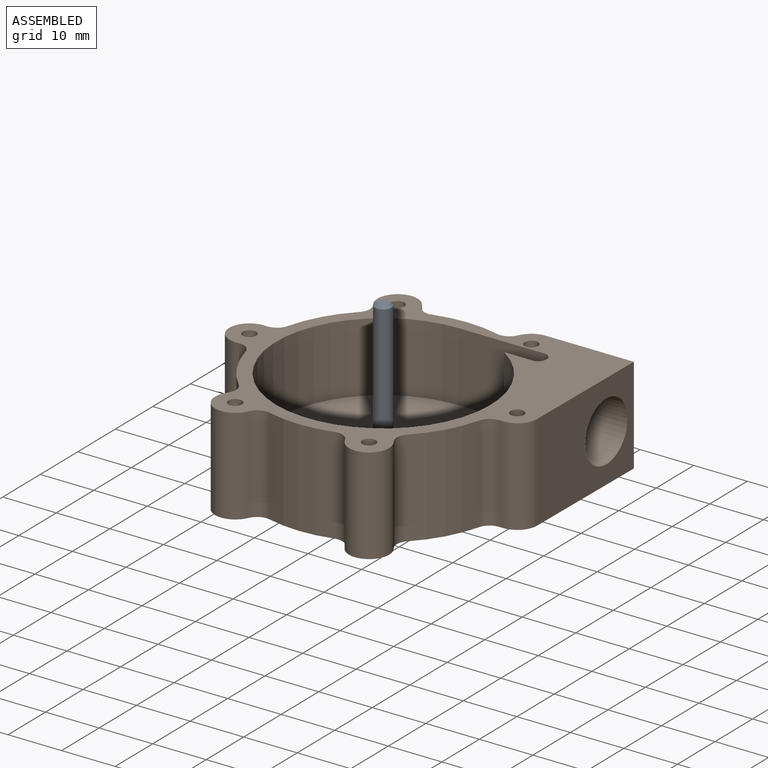
[diagram: assembled view]
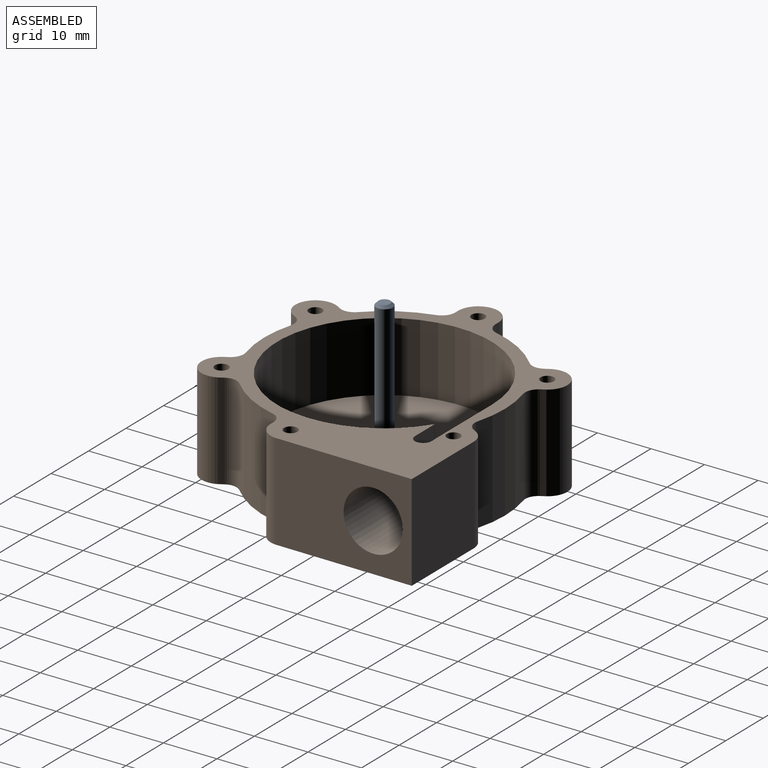
[diagram: assembled view, second angle]
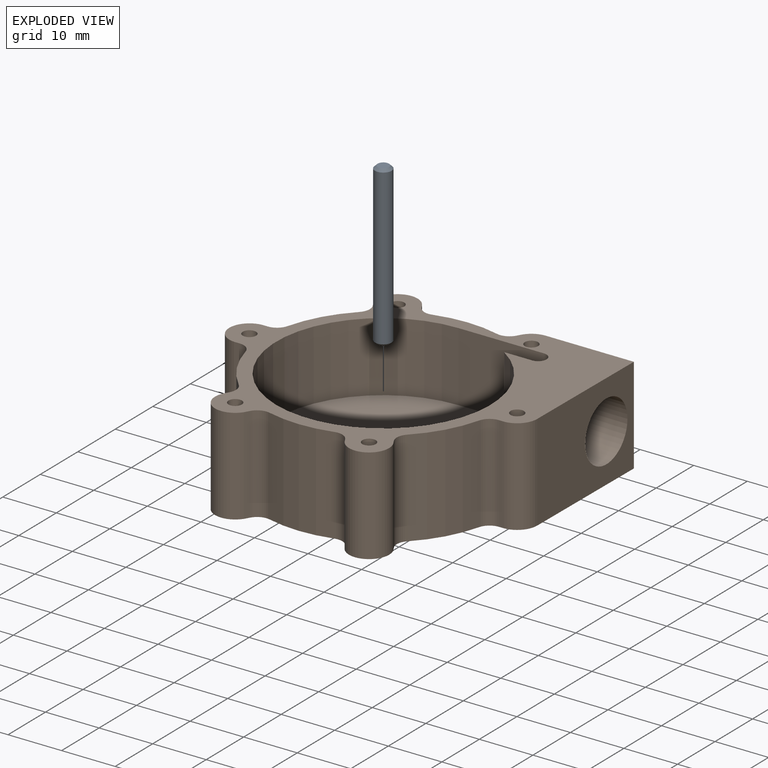
[diagram: exploded view]
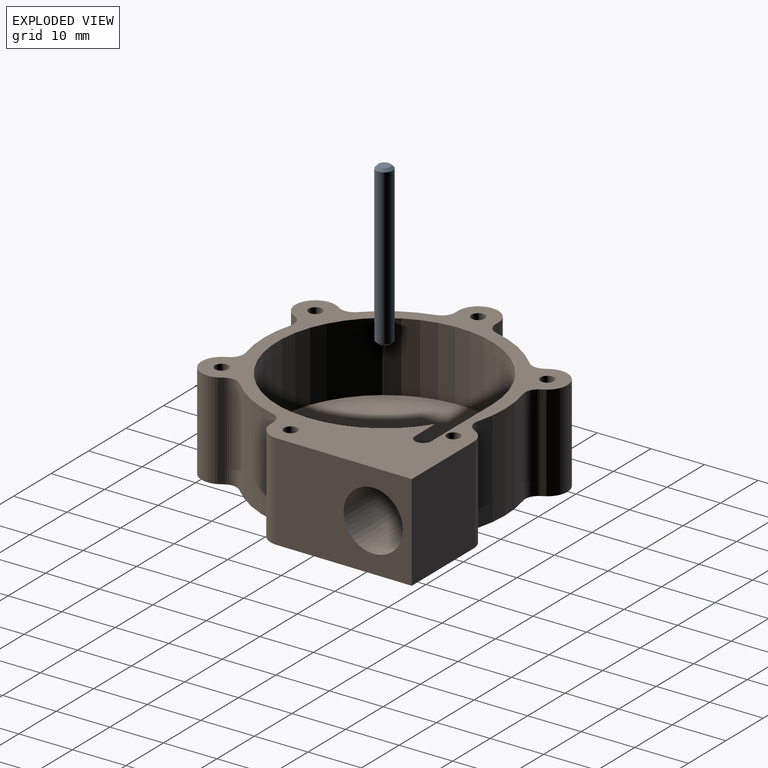
[diagram: exploded view, second angle]
ASSEMBLY  parts=2 mates=2
PART A: 5 faces, bbox 3.1x3.1x30 mm
  f0: cylinder r=1.56mm len=29mm, axis (0,0,-1), area 284.7mm2, adj f3,f4
  f1: plane 2.13x2.13mm, normal (0,0,1), area 3.5mm2, adj f3
  f2: plane 2.13x2.13mm, normal (0,0,-1), area 3.5mm2, adj f4
  f3: cone r=1.06mm half-angle=45deg, axis (0,0,-1), area 5.8mm2, adj f0,f1
  f4: cone r=1.56mm half-angle=45deg, axis (0,0,1), area 5.8mm2, adj f0,f2
PART B: 53 faces, bbox 57.8x50.8x18 mm
  f0: plane 16x13mm, normal (0,-1,0), area 198mm2, adj f1,f41,f43,f45,f52
  f1: cylinder r=1.56mm len=4.5mm, axis (0,0,-1), area 18.2mm2, adj f0,f2,f43,f45,f46,f47
  f2: plane 13x5.27mm, normal (0,1,0), area 57.2mm2, adj f1,f41,f43,f46,f52
  f3: plane 18x16.42mm, normal (0,1,0), area 295.6mm2, adj f4,f42,f43,f44
  f4: cylinder r=3.75mm len=18mm, axis (0,0,-1), area 67.3mm2, adj f3,f5,f43,f44
  f5: plane 18x0.92mm, normal (-0.87,0.5,0), area 19.1mm2, adj f4,f6,f43,f44
  f6: cylinder r=2.5mm len=18mm, axis (0,0,-1), area 59.3mm2, adj f5,f7,f43,f44
  f7: cylinder r=22.5mm len=18mm, axis (0,0,-1), area 219.7mm2, adj f6,f8,f43,f44
  f8: cylinder r=2.5mm len=18mm, axis (0,0,-1), area 59.3mm2, adj f7,f9,f43,f44
  f9: plane 18x0.85mm, normal (0.87,0.5,0), area 17.7mm2, adj f8,f10,f43,f44
  f10: cylinder r=3.75mm len=18mm, axis (0,0,-1), area 203.8mm2, adj f9,f11,f43,f44
  f11: plane 18x0.92mm, normal (-0.87,-0.5,0), area 19.1mm2, adj f10,f12,f43,f44
  f12: cylinder r=2.5mm len=18mm, axis (0,0,-1), area 59.3mm2, adj f11,f13,f43,f44
  f13: cylinder r=22.5mm len=18mm, axis (0,0,-1), area 219.7mm2, adj f12,f14,f43,f44
  f14: cylinder r=2.5mm len=18mm, axis (0,0,-1), area 59.3mm2, adj f13,f15,f43,f44
  f15: plane 18x0.99mm, normal (0,1,0), area 17.7mm2, adj f14,f16,f43,f44
  f16: cylinder r=3.75mm len=18mm, axis (0,0,-1), area 203.8mm2, adj f15,f17,f43,f44
  f17: plane 18x1.06mm, normal (0,-1,0), area 19.1mm2, adj f16,f18,f43,f44
  f18: cylinder r=2.5mm len=18mm, axis (0,0,-1), area 59.3mm2, adj f17,f19,f43,f44
  f19: cylinder r=22.5mm len=18mm, axis (0,0,-1), area 219.7mm2, adj f18,f20,f43,f44
  f20: cylinder r=2.5mm len=18mm, axis (0,0,-1), area 59.3mm2, adj f19,f21,f43,f44
  f21: plane 18x0.85mm, normal (-0.87,0.5,0), area 17.7mm2, adj f20,f22,f43,f44
  f22: cylinder r=3.75mm len=18mm, axis (0,0,-1), area 203.8mm2, adj f21,f23,f43,f44
  f23: plane 18x0.92mm, normal (0.87,-0.5,0), area 19.1mm2, adj f22,f24,f43,f44
  f24: cylinder r=2.5mm len=18mm, axis (0,0,-1), area 59.3mm2, adj f23,f25,f43,f44
  f25: cylinder r=22.5mm len=18mm, axis (0,0,-1), area 219.7mm2, adj f24,f26,f43,f44
  f26: cylinder r=2.5mm len=18mm, axis (0,0,-1), area 59.3mm2, adj f25,f27,f43,f44
  f27: plane 18x0.85mm, normal (-0.87,-0.5,0), area 17.7mm2, adj f26,f28,f43,f44
  f28: cylinder r=3.75mm len=18mm, axis (0,0,-1), area 203.8mm2, adj f27,f29,f43,f44
  f29: plane 18x0.92mm, normal (0.87,0.5,0), area 19.1mm2, adj f28,f30,f43,f44
  f30: cylinder r=2.5mm len=18mm, axis (0,0,-1), area 59.3mm2, adj f29,f31,f43,f44
  f31: cylinder r=22.5mm len=18mm, axis (0,0,-1), area 219.7mm2, adj f30,f32,f43,f44
  f32: cylinder r=2.5mm len=18mm, axis (0,0,-1), area 59.3mm2, adj f31,f33,f43,f44
  f33: plane 18x0.99mm, normal (0,-1,0), area 17.7mm2, adj f32,f34,f43,f44
  f34: cylinder r=3.75mm len=18mm, axis (0,0,-1), area 101.9mm2, adj f33,f42,f43,f44
  f35: cylinder r=1.25mm len=18mm, axis (0,0,-1), area 141.4mm2, adj f43,f44
  f36: cylinder r=1.25mm len=18mm, axis (0,0,-1), area 141.4mm2, adj f43,f44
  f37: cylinder r=1.25mm len=18mm, axis (0,0,-1), area 141.4mm2, adj f43,f44
  f38: cylinder r=1.25mm len=18mm, axis (0,0,-1), area 141.4mm2, adj f43,f44
  f39: cylinder r=1.25mm len=18mm, axis (0,0,-1), area 141.4mm2, adj f43,f44
  f40: cylinder r=1.25mm len=18mm, axis (0,0,-1), area 141.4mm2, adj f43,f44
  f41: cylinder r=20mm len=40mm, axis (0,0,-1), area 1486.3mm2, adj f0,f2,f43,f52
  f42: plane 25.44x18mm, normal (1,-0.01,0), area 360.6mm2, adj f3,f34,f43,f44,f47
  f43: plane 57.75x50.8mm, normal (0,0,1), area 771.4mm2, adj f0,f1,f2,f3,f4,f5,f6,f7
  f44: plane 57.75x50.8mm, normal (0,0,-1), area 2051.5mm2, adj f3,f4,f5,f6,f7,f8,f9,f10
  f45: cone r=0mm half-angle=59deg, axis (1,-0.01,0), area 34.9mm2, adj f0,f1,f47,f48,f50
  f46: cone r=0mm half-angle=59deg, axis (1,-0.01,0), area 38.7mm2, adj f1,f2,f47,f49,f50
  f47: cylinder r=5.56mm len=12.61mm, axis (1,-0.01,0), area 432mm2, adj f1,f42,f45,f46,f50
  f48: plane 0.52x0.29mm, normal (0,1,0), area 0.1mm2, adj f45,f50,f52
  f49: plane 0.68x0.4mm, normal (0,-1,0), area 0.1mm2, adj f46,f50,f52
  f50: cylinder r=1.56mm len=3.13mm, axis (0,0,-1), area 6.3mm2, adj f45,f46,f47,f48,f49,f52
  f51: cylinder r=1.56mm len=5mm, axis (0,0,-1), area 49.1mm2, adj f44,f52
  f52: plane 40x40mm, normal (0,0,1), area 1280.1mm2, adj f0,f2,f41,f48,f49,f50,f51
PLACE A t=(1.05,0.01,-10)mm
PLACE B t=(1.05,0.01,-10)mm
MATE parallel A.f0 <-> B.f44  axis (0,0,-1) through (1.05,0.01,-10)mm
MATE cylindrical A.f0 <-> B.f7  axis (0,0,-1) through (1.05,0.01,5)mm
